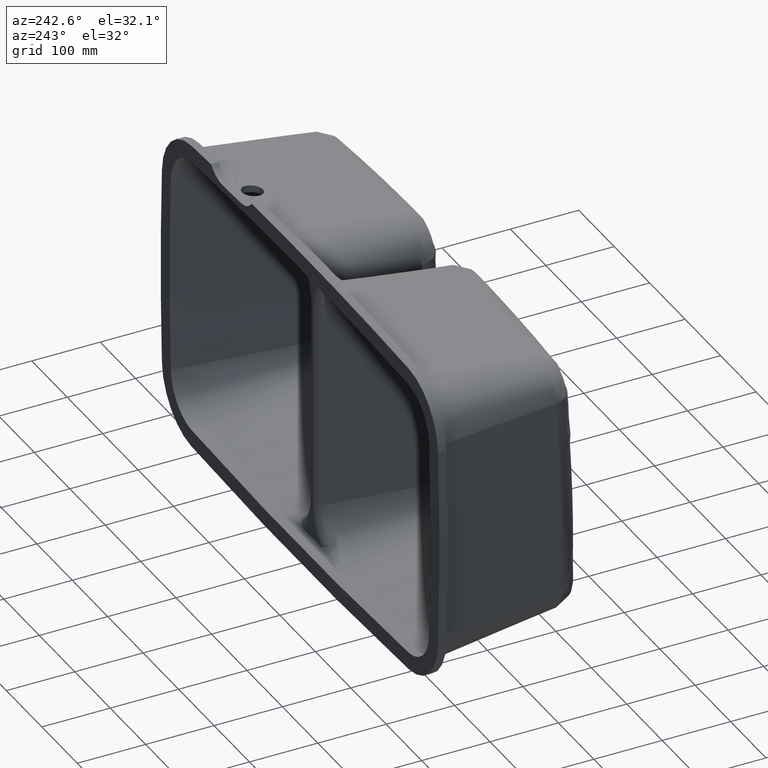
[diagram: clean part render]
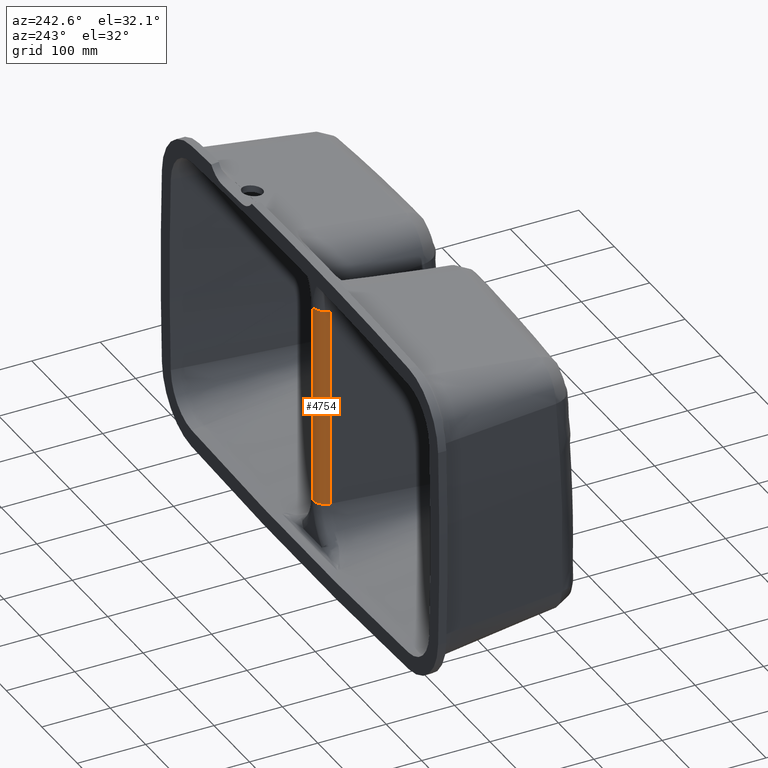
[diagram: same view with one face highlighted and labeled with its STEP entity id]
A machine part, auxiliary view. The second image highlights one B-rep face of the part: STEP entity #4754.
In plain terms, the highlighted cylindrical surface (edge-blend (fillet) strip) has radius 18.054 mm, axis along (-0, 0, -1).
Its self-contained STEP definition (entity closure, byte-faithful):
#442 = VERTEX_POINT ( 'NONE', #1926 ) ;
#483 = DIRECTION ( 'NONE',  ( 1.000000000000000000, 0.0000000000000000000, 0.0000000000000000000 ) ) ;
#874 = VECTOR ( 'NONE', #7670, 1000.000000000000000 ) ;
#918 = EDGE_CURVE ( 'NONE', #942, #7720, #4427, .T. ) ;
#942 = VERTEX_POINT ( 'NONE', #2998 ) ;
#1825 = EDGE_CURVE ( 'NONE', #7720, #2454, #4912, .T. ) ;
#1926 = CARTESIAN_POINT ( 'NONE',  ( 165.3820784341326100, 193.0063644354091800, -147.6775538111063200 ) ) ;
#1983 = ORIENTED_EDGE ( 'NONE', *, *, #1825, .F. ) ;
#2145 = AXIS2_PLACEMENT_3D ( 'NONE', #6243, #9348, #2336 ) ;
#2336 = DIRECTION ( 'NONE',  ( -1.000000000000000000, 0.0000000000000000000, 0.0000000000000000000 ) ) ;
#2454 = VERTEX_POINT ( 'NONE', #6995 ) ;
#2998 = CARTESIAN_POINT ( 'NONE',  ( 183.3015066558650400, 208.8601353095726300, -147.6775538111063200 ) ) ;
#3300 = ORIENTED_EDGE ( 'NONE', *, *, #918, .F. ) ;
#3755 = VECTOR ( 'NONE', #3850, 1000.000000000000000 ) ;
#3850 = DIRECTION ( 'NONE',  ( -9.425218243329454300E-017, 0.0000000000000000000, -1.000000000000000000 ) ) ;
#3919 = EDGE_CURVE ( 'NONE', #942, #442, #6089, .T. ) ;
#4128 = EDGE_LOOP ( 'NONE', ( #8800, #5870, #1983, #3300 ) ) ;
#4427 = LINE ( 'NONE', #5338, #874 ) ;
#4623 = DIRECTION ( 'NONE',  ( 0.0000000000000000000, -0.0000000000000000000, 1.000000000000000000 ) ) ;
#4754 = ADVANCED_FACE ( 'NONE', ( #4881 ), #9899, .T. ) ;
#4881 = FACE_OUTER_BOUND ( 'NONE', #4128, .T. ) ;
#4912 = CIRCLE ( 'NONE', #6562, 18.05399999999998800 ) ;
#5271 = DIRECTION ( 'NONE',  ( 1.000000000000000000, 0.0000000000000000000, 0.0000000000000000000 ) ) ;
#5338 = CARTESIAN_POINT ( 'NONE',  ( 183.3015066558650700, 208.8601353095726300, 0.005192751172424574400 ) ) ;
#5870 = ORIENTED_EDGE ( 'NONE', *, *, #7068, .F. ) ;
#6089 = CIRCLE ( 'NONE', #6388, 18.05399999999998800 ) ;
#6147 = CARTESIAN_POINT ( 'NONE',  ( 183.3015066558650700, 190.8061353095726500, 147.6879393134511800 ) ) ;
#6185 = CARTESIAN_POINT ( 'NONE',  ( 165.3820784341326100, 193.0063644354091800, -147.6775538111063200 ) ) ;
#6243 = CARTESIAN_POINT ( 'NONE',  ( 183.3015066558650400, 190.8061353095726500, -147.6775538111063200 ) ) ;
#6388 = AXIS2_PLACEMENT_3D ( 'NONE', #7488, #8285, #483 ) ;
#6444 = CARTESIAN_POINT ( 'NONE',  ( 183.3015066558650700, 208.8601353095726300, 147.6879393134511800 ) ) ;
#6562 = AXIS2_PLACEMENT_3D ( 'NONE', #6147, #4623, #5271 ) ;
#6995 = CARTESIAN_POINT ( 'NONE',  ( 165.3820784341327800, 193.0063644354091800, 147.6879393134511800 ) ) ;
#7068 = EDGE_CURVE ( 'NONE', #2454, #442, #8148, .T. ) ;
#7488 = CARTESIAN_POINT ( 'NONE',  ( 183.3015066558651800, 190.8061353095726500, -147.6775538111063200 ) ) ;
#7670 = DIRECTION ( 'NONE',  ( 9.425218243329454300E-017, -0.0000000000000000000, 1.000000000000000000 ) ) ;
#7720 = VERTEX_POINT ( 'NONE', #6444 ) ;
#8148 = LINE ( 'NONE', #6185, #3755 ) ;
#8285 = DIRECTION ( 'NONE',  ( 0.0000000000000000000, -0.0000000000000000000, 1.000000000000000000 ) ) ;
#8800 = ORIENTED_EDGE ( 'NONE', *, *, #3919, .T. ) ;
#9348 = DIRECTION ( 'NONE',  ( -9.425218243329454300E-017, 0.0000000000000000000, -1.000000000000000000 ) ) ;
#9899 = CYLINDRICAL_SURFACE ( 'NONE', #2145, 18.05399999999998800 ) ;